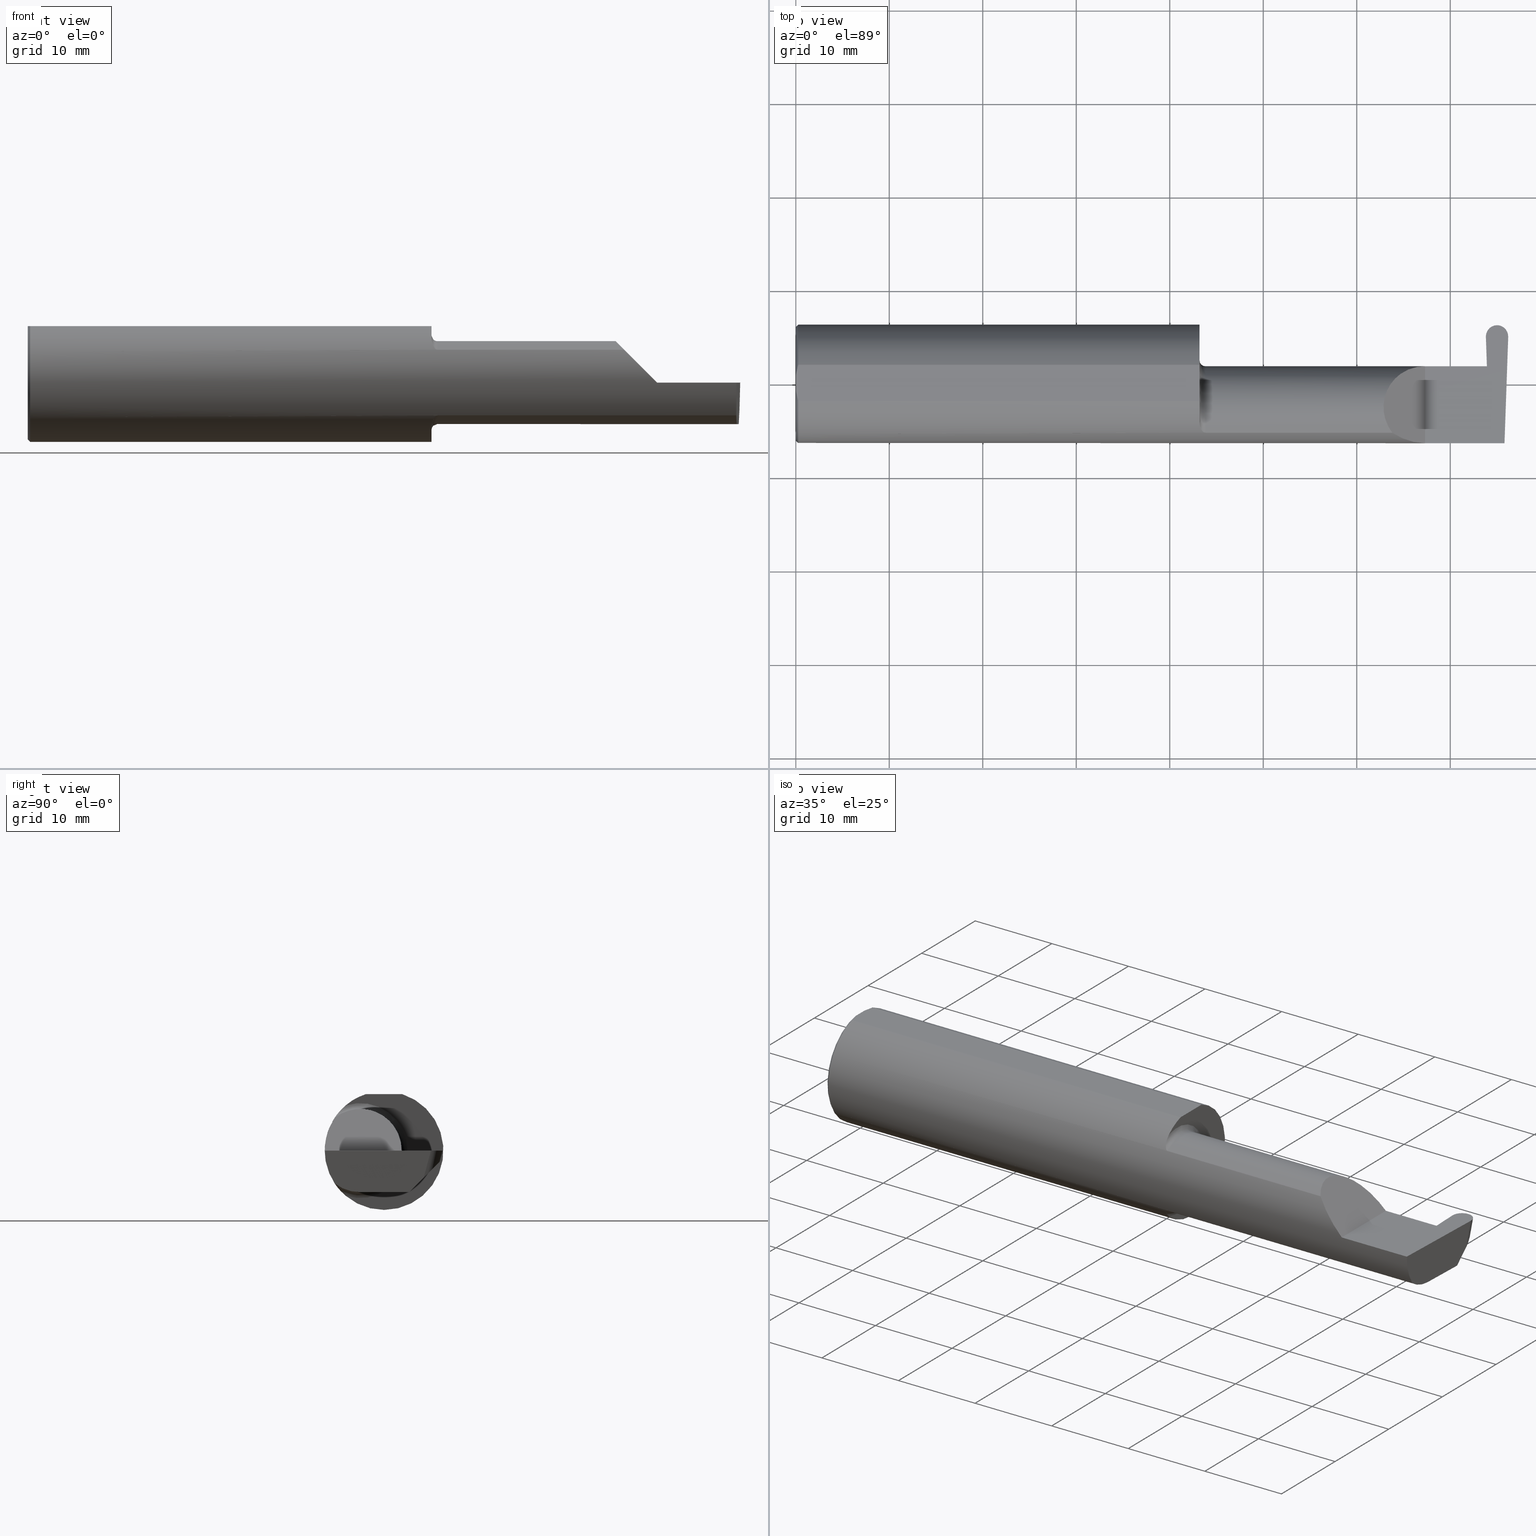
[diagram: canonical four-view strip — front | top / right | iso, engineering-drawing reading convention]
A machine part, canonical four-view strip (front | top / right | iso — engineering-drawing reading convention). The complete STEP part file that produces these views, byte-faithful:
ISO-10303-21;
HEADER;
FILE_DESCRIPTION (( 'STEP AP203' ),
    '1' );
FILE_NAME ('222464-GFR093-20.STEP',
    '2024-06-28T18:33:10',
    ( '' ),
    ( '' ),
    'SwSTEP 2.0',
    'SolidWorks 2024',
    '' );
FILE_SCHEMA (( 'CONFIG_CONTROL_DESIGN' ));
ENDSEC;

DATA;
#1 = CARTESIAN_POINT ( 'NONE',  ( 0.009999999999999856226, 0.07650098038587520299, 0.2378499999999998671 ) ) ;
#2 = VERTEX_POINT ( 'NONE', #653 ) ;
#3 = DIRECTION ( 'NONE',  ( -1.000000000000000000, 4.247829560181828762E-17, -0.000000000000000000 ) ) ;
#4 = EDGE_CURVE ( 'NONE', #442, #472, #268, .T. ) ;
#5 = ORIENTED_EDGE ( 'NONE', *, *, #140, .T. ) ;
#6 = CARTESIAN_POINT ( 'NONE',  ( 1.700000000000000400, -0.1716188362992554783, -0.1820560320165481027 ) ) ;
#7 = ORIENTED_EDGE ( 'NONE', *, *, #140, .F. ) ;
#8 = LOCAL_TIME ( 11, 33, 10.00000000000000000, #607 ) ;
#9 = CARTESIAN_POINT ( 'NONE',  ( -0.002039370078740339320, 0.2471499999999999808, 0.000000000000000000 ) ) ;
#10 = EDGE_LOOP ( 'NONE', ( #5, #610, #444, #145, #21, #114, #254, #671, #198, #668 ) ) ;
#11 = CARTESIAN_POINT ( 'NONE',  ( 2.983451391416268805, -0.2498499999999999610, -0.04956584089959722994 ) ) ;
#12 = EDGE_CURVE ( 'NONE', #59, #184, #541, .T. ) ;
#13 = CARTESIAN_POINT ( 'NONE',  ( 2.951281560477486465, 0.1819474783821845298, -0.06174506811695041480 ) ) ;
#14 = APPROVAL_PERSON_ORGANIZATION ( #138, #81, #303 ) ;
#15 = ORIENTED_EDGE ( 'NONE', *, *, #551, .T. ) ;
#16 = CARTESIAN_POINT ( 'NONE',  ( 2.910211446934811264, 0.07414999999999995206, 0.000000000000000000 ) ) ;
#17 =( BOUNDED_CURVE ( )  B_SPLINE_CURVE ( 3, ( #258, #377, #600, #700 ),
 .UNSPECIFIED., .F., .T. ) 
 B_SPLINE_CURVE_WITH_KNOTS ( ( 4, 4 ),
 ( 1.637964922114648392, 3.237953570749846577 ),
 .UNSPECIFIED. ) 
 CURVE ( )  GEOMETRIC_REPRESENTATION_ITEM ( )  RATIONAL_B_SPLINE_CURVE ( ( 1.000000000000000000, 0.7978071872141893062, 0.7978071872141893062, 1.000000000000000000 ) ) 
 REPRESENTATION_ITEM ( '' )  );
#18 = ORIENTED_EDGE ( 'NONE', *, *, #697, .T. ) ;
#19 = CARTESIAN_POINT ( 'NONE',  ( 2.905918923725884451, 0.1970717818336510108, 0.000000000000000000 ) ) ;
#20 = PLANE ( 'NONE',  #388 ) ;
#21 = ORIENTED_EDGE ( 'NONE', *, *, #309, .T. ) ;
#22 = VECTOR ( 'NONE', #423, 39.37007874015748854 ) ;
#23 = DIRECTION ( 'NONE',  ( 1.000000000000000000, -4.247829560181828762E-17, 0.000000000000000000 ) ) ;
#24 = ORIENTED_EDGE ( 'NONE', *, *, #248, .F. ) ;
#25 = ADVANCED_FACE ( 'NONE', ( #42 ), #705, .T. ) ;
#26 = DESIGN_CONTEXT ( 'detailed design', #327, 'design' ) ;
#27 = CARTESIAN_POINT ( 'NONE',  ( 2.952921434999999928, 0.2437277550733770448, -0.01277199194210160843 ) ) ;
#28 = CLOSED_SHELL ( 'NONE', ( #25, #344, #396, #58, #473, #603, #409, #175, #123, #89, #287, #154, #217, #332, #688, #146, #376, #111, #588 ) ) ;
#29 = DIRECTION ( 'NONE',  ( 0.7071067811865486830, 0.000000000000000000, -0.7071067811865462405 ) ) ;
#30 = ORIENTED_EDGE ( 'NONE', *, *, #621, .T. ) ;
#31 = COORDINATED_UNIVERSAL_TIME_OFFSET ( 8, 0, .BEHIND. ) ;
#32 = DIRECTION ( 'NONE',  ( 0.02590004391968220646, 0.2587322210431824421, 0.9656017944882974158 ) ) ;
#33 = VERTEX_POINT ( 'NONE', #262 ) ;
#34 = DIRECTION ( 'NONE',  ( 0.9992386149554829400, 0.03489418134010576628, 0.01745240643728358798 ) ) ;
#35 = PLANE ( 'NONE',  #331 ) ;
#36 = VERTEX_POINT ( 'NONE', #596 ) ;
#37 = DIRECTION ( 'NONE',  ( 1.000000000000000000, 0.000000000000000000, 0.000000000000000000 ) ) ;
#38 = DIRECTION ( 'NONE',  ( 1.000000000000000000, 0.000000000000000000, 0.000000000000000000 ) ) ;
#39 = FACE_OUTER_BOUND ( 'NONE', #10, .T. ) ;
#40 = APPROVAL_STATUS ( 'not_yet_approved' ) ;
#41 = CARTESIAN_POINT ( 'NONE',  ( 2.953264014264175064, 0.2471499999999999808, 0.000000000000000000 ) ) ;
#42 = FACE_OUTER_BOUND ( 'NONE', #511, .T. ) ;
#43 = EDGE_CURVE ( 'NONE', #584, #442, #17, .T. ) ;
#44 = ORIENTED_EDGE ( 'NONE', *, *, #652, .F. ) ;
#45 = FACE_OUTER_BOUND ( 'NONE', #675, .T. ) ;
#46 = CARTESIAN_POINT ( 'NONE',  ( 1.700000000000000178, -0.1616050818046603776, 0.1905487340154980724 ) ) ;
#47 = PERSON_AND_ORGANIZATION ( #496, #323 ) ;
#48 = CC_DESIGN_PERSON_AND_ORGANIZATION_ASSIGNMENT ( #99, #489, ( #192 ) ) ;
#49 = AXIS2_PLACEMENT_3D ( 'NONE', #416, #34, #244 ) ;
#50 = CARTESIAN_POINT ( 'NONE',  ( 0.000000000000000000, 0.000000000000000000, 0.000000000000000000 ) ) ;
#51 = VECTOR ( 'NONE', #179, 39.37007874015748143 ) ;
#52 = DIRECTION ( 'NONE',  ( 1.000000000000000000, 0.000000000000000000, 0.000000000000000000 ) ) ;
#53 =( BOUNDED_CURVE ( )  B_SPLINE_CURVE ( 3, ( #125, #112, #69, #19 ),
 .UNSPECIFIED., .F., .F. ) 
 B_SPLINE_CURVE_WITH_KNOTS ( ( 4, 4 ),
 ( 3.045231736429750757, 4.645220385064936508 ),
 .UNSPECIFIED. ) 
 CURVE ( )  GEOMETRIC_REPRESENTATION_ITEM ( )  RATIONAL_B_SPLINE_CURVE ( ( 1.000000000000000000, 0.7978071872141923038, 0.7978071872141923038, 1.000000000000000000 ) ) 
 REPRESENTATION_ITEM ( '' )  );
#54 = PERSON_AND_ORGANIZATION ( #496, #323 ) ;
#55 = CARTESIAN_POINT ( 'NONE',  ( 2.983123056744215962, -0.2355204011147991328, -0.09701513151466793772 ) ) ;
#56 = CARTESIAN_POINT ( 'NONE',  ( 0.000000000000000000, 0.03090954545120574992, 0.2378499999999998671 ) ) ;
#57 = CARTESIAN_POINT ( 'NONE',  ( 2.910211446934811264, 0.07414999999999995206, -9.645561665750315126E-21 ) ) ;
#58 = ADVANCED_FACE ( 'NONE', ( #646 ), #706, .F. ) ;
#59 = VERTEX_POINT ( 'NONE', #482 ) ;
#60 = DIRECTION ( 'NONE',  ( 1.000000000000000000, -0.000000000000000000, -0.000000000000000000 ) ) ;
#61 = VECTOR ( 'NONE', #633, 39.37007874015748143 ) ;
#62 = ORIENTED_EDGE ( 'NONE', *, *, #611, .F. ) ;
#63 = CARTESIAN_POINT ( 'NONE',  ( 0.000000000000000000, 0.03090954545120574992, 0.2378499999999998671 ) ) ;
#64 = ORIENTED_EDGE ( 'NONE', *, *, #559, .F. ) ;
#65 = APPROVAL_PERSON_ORGANIZATION ( #47, #156, #107 ) ;
#66 = CARTESIAN_POINT ( 'NONE',  ( 1.714302603425052141, -0.2041009206016211608, -0.1441313430770040926 ) ) ;
#67 = ORIENTED_EDGE ( 'NONE', *, *, #302, .F. ) ;
#68 = EDGE_CURVE ( 'NONE', #2, #59, #402, .T. ) ;
#69 = CARTESIAN_POINT ( 'NONE',  ( 2.904900810685382861, 0.2262267247321106678, 1.148125750367493843E-17 ) ) ;
#70 = LINE ( 'NONE', #454, #470 ) ;
#71 = VECTOR ( 'NONE', #672, 39.37007874015748143 ) ;
#72 = ORIENTED_EDGE ( 'NONE', *, *, #503, .T. ) ;
#73 = CARTESIAN_POINT ( 'NONE',  ( 2.983360130692194634, -0.2080850024789288044, -0.1382955322609671633 ) ) ;
#74 = CARTESIAN_POINT ( 'NONE',  ( 0.000000000000000000, 0.000000000000000000, 0.000000000000000000 ) ) ;
#75 = ORIENTED_EDGE ( 'NONE', *, *, #526, .T. ) ;
#76 = CARTESIAN_POINT ( 'NONE',  ( 3.402190948718818220, -0.1008500000000002589, -0.1750000000000000722 ) ) ;
#77 = EDGE_CURVE ( 'NONE', #679, #467, #462, .T. ) ;
#78 = CARTESIAN_POINT ( 'NONE',  ( 2.913397403057193191, -0.001152430219566448651, -0.1750000000000001832 ) ) ;
#79 = ORIENTED_EDGE ( 'NONE', *, *, #265, .T. ) ;
#80 = VECTOR ( 'NONE', #507, 39.37007874015748143 ) ;
#81 = APPROVAL ( #85, 'UNSPECIFIED' ) ;
#82 = PERSON_AND_ORGANIZATION_ROLE ( 'design_owner' ) ;
#83 = CARTESIAN_POINT ( 'NONE',  ( 2.986463790105515770, -0.1008500000000002589, -0.1750000000000000722 ) ) ;
#84 = ORIENTED_EDGE ( 'NONE', *, *, #391, .F. ) ;
#85 = APPROVAL_STATUS ( 'not_yet_approved' ) ;
#86 = CONICAL_SURFACE ( 'NONE', #429, 0.2398500000000001742, 0.7853981633974466137 ) ;
#87 = CARTESIAN_POINT ( 'NONE',  ( 2.999933069103034811, 0.1971629156477838762, 0.0003401160246315276196 ) ) ;
#88 = ORIENTED_EDGE ( 'NONE', *, *, #632, .F. ) ;
#89 = ADVANCED_FACE ( 'NONE', ( #39 ), #476, .T. ) ;
#90 = CARTESIAN_POINT ( 'NONE',  ( 0.009999999999999856226, 0.000000000000000000, 0.000000000000000000 ) ) ;
#91 = VERTEX_POINT ( 'NONE', #176 ) ;
#92 = EDGE_CURVE ( 'NONE', #467, #168, #209, .T. ) ;
#93 = DIRECTION ( 'NONE',  ( -1.000000000000000000, -0.000000000000000000, -0.000000000000000000 ) ) ;
#94 =( BOUNDED_CURVE ( )  B_SPLINE_CURVE ( 3, ( #27, #692, #461, #683 ),
 .UNSPECIFIED., .F., .T. ) 
 B_SPLINE_CURVE_WITH_KNOTS ( ( 4, 4 ),
 ( 4.712388980384682569, 4.731354904357337077 ),
 .UNSPECIFIED. ) 
 CURVE ( )  GEOMETRIC_REPRESENTATION_ITEM ( )  RATIONAL_B_SPLINE_CURVE ( ( 1.000000000000000000, 0.9999700247019541743, 0.9999700247019541743, 1.000000000000000000 ) ) 
 REPRESENTATION_ITEM ( '' )  );
#95 = ORIENTED_EDGE ( 'NONE', *, *, #438, .F. ) ;
#96 = DIRECTION ( 'NONE',  ( 0.000000000000000000, 0.000000000000000000, 1.000000000000000000 ) ) ;
#97 = DIRECTION ( 'NONE',  ( -1.224646799147351975E-16, 0.000000000000000000, -1.000000000000000000 ) ) ;
#98 = CARTESIAN_POINT ( 'NONE',  ( 1.725000000000000089, -0.2080850024789288877, 0.1382955322609669413 ) ) ;
#99 = PERSON_AND_ORGANIZATION ( #496, #323 ) ;
#100 = PLANE ( 'NONE',  #400 ) ;
#101 = EDGE_CURVE ( 'NONE', #184, #698, #594, .T. ) ;
#102 = CARTESIAN_POINT ( 'NONE',  ( 0.001983148254845701515, -0.04629825796642599717, 0.2378499999999998671 ) ) ;
#103 = CC_DESIGN_APPROVAL ( #156, ( #192 ) ) ;
#104 = CALENDAR_DATE ( 2024, 28, 6 ) ;
#105 = CARTESIAN_POINT ( 'NONE',  ( 2.899170153812740125, 0.07414999999999995206, 0.000000000000000000 ) ) ;
#106 = CARTESIAN_POINT ( 'NONE',  ( 2.650000000000000355, -0.2500000000000000555, 4.286263797015729199E-17 ) ) ;
#107 = APPROVAL_ROLE ( '' ) ;
#108 = VECTOR ( 'NONE', #421, 39.37007874015748854 ) ;
#109 = CARTESIAN_POINT ( 'NONE',  ( 2.983360130692194634, -0.2080850024789288044, -0.1382955322609671633 ) ) ;
#110 = FACE_OUTER_BOUND ( 'NONE', #339, .T. ) ;
#111 = ADVANCED_FACE ( 'NONE', ( #110 ), #662, .T. ) ;
#112 = CARTESIAN_POINT ( 'NONE',  ( 2.924395885334045708, 0.2471499999999999253, 9.093799426912671490E-18 ) ) ;
#113 = PLANE ( 'NONE',  #188 ) ;
#114 = ORIENTED_EDGE ( 'NONE', *, *, #503, .F. ) ;
#115 = DATE_AND_TIME ( #425, #8 ) ;
#116 = CIRCLE ( 'NONE', #162, 0.2498499999999999888 ) ;
#117 = CARTESIAN_POINT ( 'NONE',  ( 1.708176740666625282, -0.1972027065478072216, -0.1535263573771914747 ) ) ;
#118 = VERTEX_POINT ( 'NONE', #221 ) ;
#119 = CARTESIAN_POINT ( 'NONE',  ( 3.402190948718818220, -0.1008500000000002589, -0.1750000000000000722 ) ) ;
#120 = AXIS2_PLACEMENT_3D ( 'NONE', #183, #579, #129 ) ;
#121 = ORIENTED_EDGE ( 'NONE', *, *, #483, .F. ) ;
#122 = CARTESIAN_POINT ( 'NONE',  ( 1.725000000000000089, -0.2080850024789288599, -0.1382955322609669691 ) ) ;
#123 = ADVANCED_FACE ( 'NONE', ( #173 ), #406, .F. ) ;
#124 = VERTEX_POINT ( 'NONE', #229 ) ;
#125 = CARTESIAN_POINT ( 'NONE',  ( 2.952578855735824348, 0.2471499999999999808, 0.000000000000000000 ) ) ;
#126 = AXIS2_PLACEMENT_3D ( 'NONE', #90, #651, #359 ) ;
#127 = CARTESIAN_POINT ( 'NONE',  ( -0.002039370078740339320, 0.2348243371481683328, -0.04599999999999999922 ) ) ;
#128 = ORIENTED_EDGE ( 'NONE', *, *, #43, .T. ) ;
#129 = DIRECTION ( 'NONE',  ( 0.000000000000000000, 0.000000000000000000, -1.000000000000000000 ) ) ;
#130 = VERTEX_POINT ( 'NONE', #284 ) ;
#131 = CARTESIAN_POINT ( 'NONE',  ( 2.552984868485331127, -0.2355204011147990495, 0.09701513151466824303 ) ) ;
#132 = EDGE_CURVE ( 'NONE', #134, #442, #218, .T. ) ;
#133 = PLANE ( 'NONE',  #172 ) ;
#134 = VERTEX_POINT ( 'NONE', #437 ) ;
#135 = LINE ( 'NONE', #355, #255 ) ;
#136 = LINE ( 'NONE', #289, #481 ) ;
#137 = ORIENTED_EDGE ( 'NONE', *, *, #643, .F. ) ;
#138 = PERSON_AND_ORGANIZATION ( #496, #323 ) ;
#139 = CARTESIAN_POINT ( 'NONE',  ( 2.901419954205615603, 0.3108753354292448923, 0.03005099828107738597 ) ) ;
#140 = EDGE_CURVE ( 'NONE', #560, #168, #616, .T. ) ;
#141 = ORIENTED_EDGE ( 'NONE', *, *, #361, .T. ) ;
#142 = VECTOR ( 'NONE', #181, 39.37007874015748143 ) ;
#143 = CARTESIAN_POINT ( 'NONE',  ( 2.986970135337519761, -0.08635016968773899515, -0.1750000000000000722 ) ) ;
#144 = DIRECTION ( 'NONE',  ( -1.000000000000000000, 4.247829560181828762E-17, -0.000000000000000000 ) ) ;
#145 = ORIENTED_EDGE ( 'NONE', *, *, #536, .T. ) ;
#146 = ADVANCED_FACE ( 'NONE', ( #276 ), #382, .F. ) ;
#147 = DIRECTION ( 'NONE',  ( -0.02590004391968206768, 0.2587322210431824421, 0.9656017944882974158 ) ) ;
#148 = CARTESIAN_POINT ( 'NONE',  ( 1.717647060162628581, -0.2062109266231181293, 0.1410799729252291967 ) ) ;
#149 = EDGE_LOOP ( 'NONE', ( #694, #502, #343, #224, #488 ) ) ;
#150 = MECHANICAL_CONTEXT ( 'NONE', #266, 'mechanical' ) ;
#151 = CARTESIAN_POINT ( 'NONE',  ( 0.000000000000000000, 0.000000000000000000, 0.000000000000000000 ) ) ;
#152 = CARTESIAN_POINT ( 'NONE',  ( 0.000000000000000000, -0.03090954545120560767, 0.2378499999999998671 ) ) ;
#153 = PERSON_AND_ORGANIZATION ( #496, #323 ) ;
#154 = ADVANCED_FACE ( 'NONE', ( #395 ), #113, .F. ) ;
#155 = CARTESIAN_POINT ( 'NONE',  ( 2.950596861561887163, 0.2669494164144191606, 0.07389242801882554834 ) ) ;
#156 = APPROVAL ( #159, 'UNSPECIFIED' ) ;
#157 = ORIENTED_EDGE ( 'NONE', *, *, #673, .F. ) ;
#158 = ORIENTED_EDGE ( 'NONE', *, *, #77, .T. ) ;
#159 = APPROVAL_STATUS ( 'not_yet_approved' ) ;
#160 = LINE ( 'NONE', #155, #457 ) ;
#161 = ORIENTED_EDGE ( 'NONE', *, *, #352, .T. ) ;
#162 = AXIS2_PLACEMENT_3D ( 'NONE', #466, #405, #342 ) ;
#163 = CARTESIAN_POINT ( 'NONE',  ( 2.999923946274115405, 0.1970717818336509553, 0.000000000000000000 ) ) ;
#164 = CARTESIAN_POINT ( 'NONE',  ( 1.712616400345754686, -0.2024684335577100758, 0.1464246884265639204 ) ) ;
#165 = COORDINATED_UNIVERSAL_TIME_OFFSET ( 8, 0, .BEHIND. ) ;
#166 = CARTESIAN_POINT ( 'NONE',  ( 4.499279347985562423E-32, -0.2498499999999999610, 3.673940397442054938E-16 ) ) ;
#167 = DIRECTION ( 'NONE',  ( -1.000000000000000000, 4.247829560181828762E-17, -0.000000000000000000 ) ) ;
#168 = VERTEX_POINT ( 'NONE', #561 ) ;
#169 = SHAPE_DEFINITION_REPRESENTATION ( #550, #237 ) ;
#170 = CARTESIAN_POINT ( 'NONE',  ( 1.718863362722770294, -0.2068301641248769807, -0.1401678546132361369 ) ) ;
#171 = ORIENTED_EDGE ( 'NONE', *, *, #309, .F. ) ;
#172 = AXIS2_PLACEMENT_3D ( 'NONE', #16, #413, #190 ) ;
#173 = FACE_OUTER_BOUND ( 'NONE', #464, .T. ) ;
#174 = VERTEX_POINT ( 'NONE', #548 ) ;
#175 = ADVANCED_FACE ( 'NONE', ( #333 ), #86, .T. ) ;
#176 = CARTESIAN_POINT ( 'NONE',  ( 2.899170153812740125, 0.07414999999999995206, 0.000000000000000000 ) ) ;
#177 = EDGE_LOOP ( 'NONE', ( #88, #453, #72, #365 ) ) ;
#178 = CYLINDRICAL_SURFACE ( 'NONE', #569, 0.04700000000000001399 ) ;
#179 = DIRECTION ( 'NONE',  ( -1.000000000000000000, 4.247829560181828762E-17, -0.000000000000000000 ) ) ;
#180 = VERTEX_POINT ( 'NONE', #491 ) ;
#181 = DIRECTION ( 'NONE',  ( -1.000000000000000000, -0.000000000000000000, -0.000000000000000000 ) ) ;
#182 = CIRCLE ( 'NONE', #238, 0.2498499999999999888 ) ;
#183 = CARTESIAN_POINT ( 'NONE',  ( 0.000000000000000000, 0.000000000000000000, 0.000000000000000000 ) ) ;
#184 = VERTEX_POINT ( 'NONE', #63 ) ;
#185 = LINE ( 'NONE', #57, #475 ) ;
#186 = DIRECTION ( 'NONE',  ( 1.000000000000000000, -4.247829560181828762E-17, 0.000000000000000000 ) ) ;
#187 = ORIENTED_EDGE ( 'NONE', *, *, #361, .F. ) ;
#188 = AXIS2_PLACEMENT_3D ( 'NONE', #119, #669, #554 ) ;
#189 = PERSON_AND_ORGANIZATION ( #496, #323 ) ;
#190 = DIRECTION ( 'NONE',  ( 0.000000000000000000, -0.01745240643728358451, -0.9998476951563912696 ) ) ;
#191 = ORIENTED_EDGE ( 'NONE', *, *, #521, .T. ) ;
#192 = PRODUCT_DEFINITION_FORMATION_WITH_SPECIFIED_SOURCE ( 'ANY', '', #608, .NOT_KNOWN. ) ;
#193 = CARTESIAN_POINT ( 'NONE',  ( 1.700000000000000178, 0.2498499999999998500, 0.000000000000000000 ) ) ;
#194 =( BOUNDED_CURVE ( )  B_SPLINE_CURVE ( 3, ( #73, #55, #11, #509 ),
 .UNSPECIFIED., .F., .T. ) 
 B_SPLINE_CURVE_WITH_KNOTS ( ( 4, 4 ),
 ( 6.160376845738969820, 6.746954780470629132 ),
 .UNSPECIFIED. ) 
 CURVE ( )  GEOMETRIC_REPRESENTATION_ITEM ( )  RATIONAL_B_SPLINE_CURVE ( ( 1.000000000000000000, 0.9715321379117536349, 0.9715321379117536349, 1.000000000000000000 ) ) 
 REPRESENTATION_ITEM ( '' )  );
#195 = ORIENTED_EDGE ( 'NONE', *, *, #629, .T. ) ;
#196 = EDGE_CURVE ( 'NONE', #168, #393, #297, .T. ) ;
#197 = LINE ( 'NONE', #249, #645 ) ;
#198 = ORIENTED_EDGE ( 'NONE', *, *, #546, .F. ) ;
#199 = VECTOR ( 'NONE', #564, 39.37007874015748143 ) ;
#200 = LENGTH_MEASURE_WITH_UNIT ( LENGTH_MEASURE( 0.02539999999999999897 ), #362 );
#201 = CYLINDRICAL_SURFACE ( 'NONE', #656, 0.2498499999999999888 ) ;
#202 = ORIENTED_EDGE ( 'NONE', *, *, #551, .F. ) ;
#203 = CARTESIAN_POINT ( 'NONE',  ( 1.725000000000000089, -0.2080850024789288877, 0.1382955322609669413 ) ) ;
#204 = ORIENTED_EDGE ( 'NONE', *, *, #536, .F. ) ;
#205 = VECTOR ( 'NONE', #32, 39.37007874015748854 ) ;
#206 = DATE_TIME_ROLE ( 'creation_date' ) ;
#207 = CARTESIAN_POINT ( 'NONE',  ( 2.914374952050851508, -2.845228123214176286, -0.1794551390957415116 ) ) ;
#208 = ORIENTED_EDGE ( 'NONE', *, *, #621, .F. ) ;
#209 = CIRCLE ( 'NONE', #370, 0.1750000000000000444 ) ;
#210 = LINE ( 'NONE', #374, #22 ) ;
#211 = CARTESIAN_POINT ( 'NONE',  ( 1.706159563508734545, -0.1933019864360848994, 0.1584298865564832404 ) ) ;
#212 = CARTESIAN_POINT ( 'NONE',  ( 2.482823929317965472, 0.07414999999999999369, 0.1671760706820332731 ) ) ;
#213 = DIRECTION ( 'NONE',  ( -0.7071067811865439090, 0.000000000000000000, -0.7071067811865511255 ) ) ;
#214 =( BOUNDED_CURVE ( )  B_SPLINE_CURVE ( 3, ( #256, #426, #640, #708 ),
 .UNSPECIFIED., .F., .T. ) 
 B_SPLINE_CURVE_WITH_KNOTS ( ( 4, 4 ),
 ( 3.145606294630826749, 4.726629019293366873 ),
 .UNSPECIFIED. ) 
 CURVE ( )  GEOMETRIC_REPRESENTATION_ITEM ( )  RATIONAL_B_SPLINE_CURVE ( ( 1.000000000000000000, 0.8023213171585998893, 0.8023213171585998893, 1.000000000000000000 ) ) 
 REPRESENTATION_ITEM ( '' )  );
#215 = VECTOR ( 'NONE', #363, 39.37007874015748143 ) ;
#216 = DIRECTION ( 'NONE',  ( 1.000000000000000000, 0.000000000000000000, -0.000000000000000000 ) ) ;
#217 = ADVANCED_FACE ( 'NONE', ( #504 ), #281, .F. ) ;
#218 = LINE ( 'NONE', #445, #615 ) ;
#219 = EDGE_LOOP ( 'NONE', ( #566, #544, #538, #306, #420, #334 ) ) ;
#220 = CALENDAR_DATE ( 2024, 28, 6 ) ;
#221 = CARTESIAN_POINT ( 'NONE',  ( 2.984317093749864647, -0.2498499999999999888, 0.000000000000000000 ) ) ;
#222 = ORIENTED_EDGE ( 'NONE', *, *, #657, .F. ) ;
#223 = CARTESIAN_POINT ( 'NONE',  ( 1.725000000000000089, -0.1008500000000000785, 0.000000000000000000 ) ) ;
#224 = ORIENTED_EDGE ( 'NONE', *, *, #678, .T. ) ;
#225 = EDGE_CURVE ( 'NONE', #174, #572, #515, .T. ) ;
#226 = DIRECTION ( 'NONE',  ( 0.000000000000000000, 0.9659258262890682012, -0.2588190451025209615 ) ) ;
#227 = VERTEX_POINT ( 'NONE', #305 ) ;
#228 = LINE ( 'NONE', #436, #418 ) ;
#229 = CARTESIAN_POINT ( 'NONE',  ( 2.650000000000000355, 0.07414999999999995206, 1.592040838891556877E-16 ) ) ;
#230 = AXIS2_PLACEMENT_3D ( 'NONE', #389, #500, #336 ) ;
#231 = VERTEX_POINT ( 'NONE', #677 ) ;
#232 = CARTESIAN_POINT ( 'NONE',  ( 2.952874015799872964, 0.1988029421707689093, 0.001160379127183837908 ) ) ;
#233 = EDGE_CURVE ( 'NONE', #291, #446, #689, .T. ) ;
#234 = CARTESIAN_POINT ( 'NONE',  ( 0.009999999999999856226, 0.000000000000000000, -0.2498499999999999888 ) ) ;
#235 = ORIENTED_EDGE ( 'NONE', *, *, #632, .T. ) ;
#236 = DIRECTION ( 'NONE',  ( -0.03489949670249360703, -0.9993908270190959842, 0.000000000000000000 ) ) ;
#237 = ADVANCED_BREP_SHAPE_REPRESENTATION ( '222464-GFR093-20', ( #440, #695 ), #288 ) ;
#238 = AXIS2_PLACEMENT_3D ( 'NONE', #535, #474, #696 ) ;
#239 = DIRECTION ( 'NONE',  ( 0.000000000000000000, -0.7071067811865514585, 0.7071067811865435759 ) ) ;
#240 = ORIENTED_EDGE ( 'NONE', *, *, #384, .F. ) ;
#241 = DIRECTION ( 'NONE',  ( 0.000000000000000000, -0.7071067811865435759, -0.7071067811865514585 ) ) ;
#242 = ORIENTED_EDGE ( 'NONE', *, *, #196, .T. ) ;
#243 = AXIS2_PLACEMENT_3D ( 'NONE', #106, #213, #372 ) ;
#244 = DIRECTION ( 'NONE',  ( -0.03489949670249306579, 0.9993908270190960952, 0.000000000000000000 ) ) ;
#245 = DIRECTION ( 'NONE',  ( 4.247829560181828762E-17, 1.000000000000000000, 0.000000000000000000 ) ) ;
#246 = ORIENTED_EDGE ( 'NONE', *, *, #526, .F. ) ;
#247 = CALENDAR_DATE ( 2024, 28, 6 ) ;
#248 = EDGE_CURVE ( 'NONE', #227, #368, #401, .T. ) ;
#249 = CARTESIAN_POINT ( 'NONE',  ( 1.700000000000000178, 0.07414999999999999369, 1.592040838891556877E-16 ) ) ;
#250 = VECTOR ( 'NONE', #595, 39.37007874015748143 ) ;
#251 = VERTEX_POINT ( 'NONE', #619 ) ;
#252 = CARTESIAN_POINT ( 'NONE',  ( 0.009999999999999856226, 0.07650098038587520299, 0.2378499999999998671 ) ) ;
#253 = CARTESIAN_POINT ( 'NONE',  ( 2.899063548541081836, 0.07404339472834164937, -0.006107411922940303266 ) ) ;
#254 = ORIENTED_EDGE ( 'NONE', *, *, #233, .F. ) ;
#255 = VECTOR ( 'NONE', #525, 39.37007874015748143 ) ;
#256 = CARTESIAN_POINT ( 'NONE',  ( 2.952921434999999928, 0.2348123830215256280, -0.04601195412664269707 ) ) ;
#257 = EDGE_CURVE ( 'NONE', #231, #291, #613, .T. ) ;
#258 = CARTESIAN_POINT ( 'NONE',  ( 2.999923946274115405, 0.1970717818336509553, 0.000000000000000000 ) ) ;
#259 = DATE_AND_TIME ( #542, #598 ) ;
#260 = APPROVAL ( #40, 'UNSPECIFIED' ) ;
#261 = CARTESIAN_POINT ( 'NONE',  ( 2.899099083631634599, 0.07407892981889442618, -0.004071607948626863351 ) ) ;
#262 = CARTESIAN_POINT ( 'NONE',  ( 2.905918923725884451, 0.1970717818336510108, 0.000000000000000000 ) ) ;
#263 = CARTESIAN_POINT ( 'NONE',  ( 3.000000000000000444, -0.2500000000000000555, 0.000000000000000000 ) ) ;
#264 = CARTESIAN_POINT ( 'NONE',  ( 1.700367168219773850, -0.1713400252854602734, 0.1819601557798506131 ) ) ;
#265 = EDGE_CURVE ( 'NONE', #227, #59, #335, .T. ) ;
#266 = APPLICATION_CONTEXT ( 'configuration controlled 3d designs of mechanical parts and assemblies' ) ;
#267 = DIRECTION ( 'NONE',  ( 0.01806679408117471686, 0.000000000000000000, -0.9998367821557817559 ) ) ;
#268 = LINE ( 'NONE', #537, #358 ) ;
#269 = APPROVAL_DATE_TIME ( #322, #156 ) ;
#270 = EDGE_CURVE ( 'NONE', #184, #227, #519, .T. ) ;
#271 = DIRECTION ( 'NONE',  ( 0.000000000000000000, 0.9659258262890682012, -0.2588190451025209615 ) ) ;
#272 = DIRECTION ( 'NONE',  ( 1.000000000000000000, 0.000000000000000000, 0.000000000000000000 ) ) ;
#273 = DATE_TIME_ROLE ( 'classification_date' ) ;
#274 = DIMENSIONAL_EXPONENTS ( 1.000000000000000000, 0.000000000000000000, 0.000000000000000000, 0.000000000000000000, 0.000000000000000000, 0.000000000000000000, 0.000000000000000000 ) ;
#275 = LINE ( 'NONE', #404, #356 ) ;
#276 = FACE_OUTER_BOUND ( 'NONE', #575, .T. ) ;
#277 = ORIENTED_EDGE ( 'NONE', *, *, #132, .F. ) ;
#278 = CARTESIAN_POINT ( 'NONE',  ( 1.701385488563270432, -0.1808287530430325307, -0.1728790649396287904 ) ) ;
#279 = EDGE_CURVE ( 'NONE', #686, #679, #527, .T. ) ;
#280 = ORIENTED_EDGE ( 'NONE', *, *, #101, .T. ) ;
#281 = PLANE ( 'NONE',  #591 ) ;
#282 = ORIENTED_EDGE ( 'NONE', *, *, #449, .F. ) ;
#283 = LOCAL_TIME ( 11, 33, 10.00000000000000000, #165 ) ;
#284 = CARTESIAN_POINT ( 'NONE',  ( 2.910211446934811264, 0.07414999999999995206, 0.000000000000000000 ) ) ;
#285 = ORIENTED_EDGE ( 'NONE', *, *, #582, .F. ) ;
#286 = LINE ( 'NONE', #547, #448 ) ;
#287 = ADVANCED_FACE ( 'NONE', ( #574 ), #292, .T. ) ;
#288 =( GEOMETRIC_REPRESENTATION_CONTEXT ( 3 ) GLOBAL_UNCERTAINTY_ASSIGNED_CONTEXT ( ( #298 ) ) GLOBAL_UNIT_ASSIGNED_CONTEXT ( ( #638, #587, #687 ) ) REPRESENTATION_CONTEXT ( 'NONE', 'WORKASPACE' ) );
#289 = CARTESIAN_POINT ( 'NONE',  ( 2.905871548989777509, 0.1984284167760241857, 0.000000000000000000 ) ) ;
#290 = AXIS2_PLACEMENT_3D ( 'NONE', #13, #326, #226 ) ;
#291 = VERTEX_POINT ( 'NONE', #523 ) ;
#292 = PLANE ( 'NONE',  #435 ) ;
#293 = ORIENTED_EDGE ( 'NONE', *, *, #225, .T. ) ;
#294 = DIRECTION ( 'NONE',  ( 0.02590004391968206768, -0.2587322210431824421, -0.9656017944882974158 ) ) ;
#295 = DIRECTION ( 'NONE',  ( 0.000000000000000000, 0.000000000000000000, -1.000000000000000000 ) ) ;
#296 = ORIENTED_EDGE ( 'NONE', *, *, #460, .F. ) ;
#297 = B_SPLINE_CURVE_WITH_KNOTS ( 'NONE', 3,
 ( #122, #441, #665, #170, #386, #66, #609, #117, #556, #278, #6, #498 ),
 .UNSPECIFIED., .F., .F.,
 ( 4, 2, 2, 2, 2, 4 ),
 ( 1.964491429042083594E-07, 0.0001260981470478416474, 0.0002519998449527791149, 0.0005038032407626400096, 0.001007410032382362666, 0.002014623615621803643 ),
 .UNSPECIFIED. ) ;
#298 = UNCERTAINTY_MEASURE_WITH_UNIT (LENGTH_MEASURE( 1.000000000000000082E-05 ), #638, 'distance_accuracy_value', 'NONE');
#299 = APPLICATION_PROTOCOL_DEFINITION ( 'international standard', 'config_control_design', 1994, #327 ) ;
#300 = DIRECTION ( 'NONE',  ( 1.000000000000000000, -4.247829560181828762E-17, 0.000000000000000000 ) ) ;
#301 = ORIENTED_EDGE ( 'NONE', *, *, #667, .F. ) ;
#302 = EDGE_CURVE ( 'NONE', #174, #584, #510, .T. ) ;
#303 = APPROVAL_ROLE ( '' ) ;
#304 = CC_DESIGN_PERSON_AND_ORGANIZATION_ASSIGNMENT ( #54, #597, ( #604 ) ) ;
#305 = CARTESIAN_POINT ( 'NONE',  ( 0.000000000000000000, 0.000000000000000000, -0.2398500000000001742 ) ) ;
#306 = ORIENTED_EDGE ( 'NONE', *, *, #101, .F. ) ;
#307 = CARTESIAN_POINT ( 'NONE',  ( 0.000000000000000000, -0.07650098038587520299, 0.2378499999999998671 ) ) ;
#308 = ORIENTED_EDGE ( 'NONE', *, *, #419, .F. ) ;
#309 = EDGE_CURVE ( 'NONE', #124, #91, #197, .T. ) ;
#310 = DIRECTION ( 'NONE',  ( 0.9998367324388628408, 0.0003153570480505020501, 0.01806679318280274976 ) ) ;
#311 = DIRECTION ( 'NONE',  ( 0.000000000000000000, 0.000000000000000000, -1.000000000000000000 ) ) ;
#312 = FACE_OUTER_BOUND ( 'NONE', #642, .T. ) ;
#313 = CARTESIAN_POINT ( 'NONE',  ( 0.000000000000000000, 0.000000000000000000, 0.000000000000000000 ) ) ;
#314 = COORDINATED_UNIVERSAL_TIME_OFFSET ( 8, 0, .BEHIND. ) ;
#315 = LINE ( 'NONE', #484, #364 ) ;
#316 = APPROVAL_PERSON_ORGANIZATION ( #153, #260, #369 ) ;
#317 = DIRECTION ( 'NONE',  ( -0.000000000000000000, 1.000000000000000000, -0.000000000000000000 ) ) ;
#318 = PERSON_AND_ORGANIZATION ( #496, #323 ) ;
#319 = CARTESIAN_POINT ( 'NONE',  ( 2.983360130692194634, -0.2080850024789288044, -0.1382955322609671633 ) ) ;
#320 = CARTESIAN_POINT ( 'NONE',  ( 1.714343523383978329, -0.2041337200786081940, 0.1440846171672512943 ) ) ;
#321 = EDGE_CURVE ( 'NONE', #180, #698, #70, .T. ) ;
#322 = DATE_AND_TIME ( #220, #469 ) ;
#323 = ORGANIZATION ( 'UNSPECIFIED', 'UNSPECIFIED', '' ) ;
#324 = VECTOR ( 'NONE', #317, 39.37007874015748143 ) ;
#325 = DIRECTION ( 'NONE',  ( 0.000000000000000000, -1.000000000000000000, 0.000000000000000000 ) ) ;
#326 = DIRECTION ( 'NONE',  ( -0.02590004391968220646, -0.2587322210431824976, -0.9656017944882975268 ) ) ;
#327 = APPLICATION_CONTEXT ( 'configuration controlled 3d designs of mechanical parts and assemblies' ) ;
#328 = CARTESIAN_POINT ( 'NONE',  ( 2.993681016992925770, 0.1058243371481696476, -0.1750000000000001277 ) ) ;
#329 = CARTESIAN_POINT ( 'NONE',  ( 0.005466242398876384675, 0.06169385855649840017, 0.2378499999999998671 ) ) ;
#330 = ORIENTED_EDGE ( 'NONE', *, *, #340, .F. ) ;
#331 = AXIS2_PLACEMENT_3D ( 'NONE', #263, #97, #583 ) ;
#332 = ADVANCED_FACE ( 'NONE', ( #685 ), #20, .F. ) ;
#333 = FACE_OUTER_BOUND ( 'NONE', #631, .T. ) ;
#334 = ORIENTED_EDGE ( 'NONE', *, *, #68, .F. ) ;
#335 = CIRCLE ( 'NONE', #120, 0.2398500000000001742 ) ;
#336 = DIRECTION ( 'NONE',  ( -0.03489949670249360009, -0.9993908270190959842, 0.000000000000000000 ) ) ;
#337 = ORIENTED_EDGE ( 'NONE', *, *, #68, .T. ) ;
#338 = DIRECTION ( 'NONE',  ( 0.000000000000000000, -0.9659258262890682012, 0.2588190451025209615 ) ) ;
#339 = EDGE_LOOP ( 'NONE', ( #67, #95, #157, #614, #627 ) ) ;
#340 = EDGE_CURVE ( 'NONE', #393, #180, #116, .T. ) ;
#341 = CARTESIAN_POINT ( 'NONE',  ( 2.910211446934811264, 0.07414999999999995206, 0.000000000000000000 ) ) ;
#342 = DIRECTION ( 'NONE',  ( 0.000000000000000000, 1.000000000000000000, 0.000000000000000000 ) ) ;
#343 = ORIENTED_EDGE ( 'NONE', *, *, #643, .T. ) ;
#344 = ADVANCED_FACE ( 'NONE', ( #565 ), #133, .F. ) ;
#345 = CARTESIAN_POINT ( 'NONE',  ( 2.908987657962752937, 0.1664162189566759653, -0.1144081181914931161 ) ) ;
#346 = AXIS2_PLACEMENT_3D ( 'NONE', #366, #144, #325 ) ;
#347 = DIRECTION ( 'NONE',  ( -1.000000000000000000, -0.000000000000000000, -0.000000000000000000 ) ) ;
#348 = ORIENTED_EDGE ( 'NONE', *, *, #629, .F. ) ;
#349 = CARTESIAN_POINT ( 'NONE',  ( 2.906932232762046375, 0.2056520186124942418, -0.07517231853567442335 ) ) ;
#350 = DIRECTION ( 'NONE',  ( 0.000000000000000000, 1.000000000000000000, 0.000000000000000000 ) ) ;
#351 = VERTEX_POINT ( 'NONE', #630 ) ;
#352 = EDGE_CURVE ( 'NONE', #130, #33, #136, .T. ) ;
#353 = CARTESIAN_POINT ( 'NONE',  ( 1.700000000000000178, 0.07404339472834167712, -0.006107411922940873122 ) ) ;
#354 = VERTEX_POINT ( 'NONE', #83 ) ;
#355 = CARTESIAN_POINT ( 'NONE',  ( -0.002039370078740339320, 0.1058243371481696476, -0.1750000000000001277 ) ) ;
#356 = VECTOR ( 'NONE', #394, 39.37007874015747433 ) ;
#357 = ORIENTED_EDGE ( 'NONE', *, *, #697, .F. ) ;
#358 = VECTOR ( 'NONE', #432, 39.37007874015748854 ) ;
#359 = DIRECTION ( 'NONE',  ( 0.000000000000000000, 0.000000000000000000, -1.000000000000000000 ) ) ;
#360 = ORIENTED_EDGE ( 'NONE', *, *, #657, .T. ) ;
#361 = EDGE_CURVE ( 'NONE', #251, #383, #518, .T. ) ;
#362 =( LENGTH_UNIT ( ) NAMED_UNIT ( * ) SI_UNIT ( $, .METRE. ) );
#363 = DIRECTION ( 'NONE',  ( 4.247829560181828762E-17, 1.000000000000000000, -0.000000000000000000 ) ) ;
#364 = VECTOR ( 'NONE', #648, 39.37007874015748854 ) ;
#365 = ORIENTED_EDGE ( 'NONE', *, *, #652, .T. ) ;
#366 = CARTESIAN_POINT ( 'NONE',  ( 1.700000000000000178, -0.1008500000000000785, 0.000000000000000000 ) ) ;
#367 = CARTESIAN_POINT ( 'NONE',  ( 0.000000000000000000, 0.2498499999999998500, 0.2378499999999998671 ) ) ;
#368 = VERTEX_POINT ( 'NONE', #234 ) ;
#369 = APPROVAL_ROLE ( '' ) ;
#370 = AXIS2_PLACEMENT_3D ( 'NONE', #223, #167, #605 ) ;
#371 = LINE ( 'NONE', #307, #250 ) ;
#372 = DIRECTION ( 'NONE',  ( -0.7071067811865511255, 0.000000000000000000, 0.7071067811865439090 ) ) ;
#373 = ORIENTED_EDGE ( 'NONE', *, *, #225, .F. ) ;
#374 = CARTESIAN_POINT ( 'NONE',  ( 2.905909800896965045, 0.1971629156477839040, 0.0003401160246315234454 ) ) ;
#375 = CC_DESIGN_APPROVAL ( #81, ( #604 ) ) ;
#376 = ADVANCED_FACE ( 'NONE', ( #312 ), #599, .F. ) ;
#377 = CARTESIAN_POINT ( 'NONE',  ( 3.000942059314616550, 0.2262267247321108621, 2.658190119782672195E-18 ) ) ;
#378 = PERSON_AND_ORGANIZATION_ROLE ( 'design_supplier' ) ;
#379 = CARTESIAN_POINT ( 'NONE',  ( 2.409263745716142768, -0.07597241004310609225, 0.2407362542838549779 ) ) ;
#380 = CARTESIAN_POINT ( 'NONE',  ( 1.723329956043142763, -0.2080850024798588660, 0.1382955322595677550 ) ) ;
#381 = DIRECTION ( 'NONE',  ( -0.01806954526206907413, 0.01744955702544858864, 0.9996844524616943506 ) ) ;
#382 = PLANE ( 'NONE',  #230 ) ;
#383 = VERTEX_POINT ( 'NONE', #528 ) ;
#384 = EDGE_CURVE ( 'NONE', #686, #180, #480, .T. ) ;
#385 = CC_DESIGN_DATE_AND_TIME_ASSIGNMENT ( #115, #206, ( #604 ) ) ;
#386 = CARTESIAN_POINT ( 'NONE',  ( 1.717611663768900288, -0.2061921161193829288, -0.1411075319999378352 ) ) ;
#387 = EDGE_LOOP ( 'NONE', ( #7, #15, #195, #360, #62, #403, #428, #84, #411, #664, #562, #330, #459 ) ) ;
#388 = AXIS2_PLACEMENT_3D ( 'NONE', #127, #239, #241 ) ;
#389 = CARTESIAN_POINT ( 'NONE',  ( 2.999971321010222347, 0.1984284167760241857, 0.000000000000000000 ) ) ;
#390 = ORIENTED_EDGE ( 'NONE', *, *, #279, .T. ) ;
#391 = EDGE_CURVE ( 'NONE', #2, #686, #371, .T. ) ;
#392 = DIRECTION ( 'NONE',  ( 0.000000000000000000, -1.000000000000000000, 0.000000000000000000 ) ) ;
#393 = VERTEX_POINT ( 'NONE', #704 ) ;
#394 = DIRECTION ( 'NONE',  ( -0.03489949670249306579, 0.9993908270190960952, -1.222058880457094641E-16 ) ) ;
#395 = FACE_OUTER_BOUND ( 'NONE', #149, .T. ) ;
#396 = ADVANCED_FACE ( 'NONE', ( #702 ), #201, .T. ) ;
#397 = ORIENTED_EDGE ( 'NONE', *, *, #707, .F. ) ;
#398 = PRODUCT_RELATED_PRODUCT_CATEGORY ( 'detail', '', ( #608 ) ) ;
#399 = CARTESIAN_POINT ( 'NONE',  ( 2.600434159100402987, -0.2498499999999999888, 0.04956584089959736872 ) ) ;
#400 = AXIS2_PLACEMENT_3D ( 'NONE', #151, #38, #531 ) ;
#401 = LINE ( 'NONE', #410, #450 ) ;
#402 = B_SPLINE_CURVE_WITH_KNOTS ( 'NONE', 3,
 ( #422, #427, #102, #152 ),
 .UNSPECIFIED., .F., .F.,
 ( 4, 4 ),
 ( 0.01317593029100230795, 0.01435802289191462008 ),
 .UNSPECIFIED. ) ;
#403 = ORIENTED_EDGE ( 'NONE', *, *, #77, .F. ) ;
#404 = CARTESIAN_POINT ( 'NONE',  ( 2.919967132617691696, -0.1176896267254948364, -0.1750000000000000722 ) ) ;
#405 = DIRECTION ( 'NONE',  ( 1.000000000000000000, -4.247829560181828762E-17, 0.000000000000000000 ) ) ;
#406 = TOROIDAL_SURFACE ( 'NONE', #497, 0.1999999999999999833, 0.02499999999999994241 ) ;
#407 = ORIENTED_EDGE ( 'NONE', *, *, #582, .T. ) ;
#408 = CARTESIAN_POINT ( 'NONE',  ( 2.910211446934811264, 0.07414999999999995206, -9.645561665750315126E-21 ) ) ;
#409 = ADVANCED_FACE ( 'NONE', ( #478 ), #100, .F. ) ;
#410 = CARTESIAN_POINT ( 'NONE',  ( 0.000000000000000000, 0.000000000000000000, -0.2398500000000001742 ) ) ;
#411 = ORIENTED_EDGE ( 'NONE', *, *, #419, .T. ) ;
#412 = LOCAL_TIME ( 11, 33, 10.00000000000000000, #31 ) ;
#413 = DIRECTION ( 'NONE',  ( 0.000000000000000000, -0.9998476951563912696, 0.01745240643728358451 ) ) ;
#414 = ORIENTED_EDGE ( 'NONE', *, *, #340, .T. ) ;
#415 =( BOUNDED_CURVE ( )  B_SPLINE_CURVE ( 3, ( #345, #349, #573, #635 ),
 .UNSPECIFIED., .F., .F. ) 
 B_SPLINE_CURVE_WITH_KNOTS ( ( 4, 4 ),
 ( 1.556556287886220469, 3.137579012548759039 ),
 .UNSPECIFIED. ) 
 CURVE ( )  GEOMETRIC_REPRESENTATION_ITEM ( )  RATIONAL_B_SPLINE_CURVE ( ( 1.000000000000000000, 0.8023213171586003334, 0.8023213171586003334, 1.000000000000000000 ) ) 
 REPRESENTATION_ITEM ( '' )  );
#416 = CARTESIAN_POINT ( 'NONE',  ( 2.905871548989777509, 0.1984284167760241857, 0.000000000000000000 ) ) ;
#417 = CARTESIAN_POINT ( 'NONE',  ( 2.984022185481226330, -0.1771157075472507281, -0.1623092683844333250 ) ) ;
#418 = VECTOR ( 'NONE', #447, 39.37007874015748143 ) ;
#419 = EDGE_CURVE ( 'NONE', #2, #368, #492, .T. ) ;
#420 = ORIENTED_EDGE ( 'NONE', *, *, #12, .F. ) ;
#421 = DIRECTION ( 'NONE',  ( -0.03489949670249360009, -0.9993908270190959842, 1.222058880457094394E-16 ) ) ;
#422 = CARTESIAN_POINT ( 'NONE',  ( 0.009999999999999856226, -0.07650098038587520299, 0.2378499999999998671 ) ) ;
#423 = DIRECTION ( 'NONE',  ( 0.02590004391968206074, -0.2587322210431824421, -0.9656017944882974158 ) ) ;
#424 = DIRECTION ( 'NONE',  ( -1.000000000000000000, 4.247829560181828762E-17, -0.000000000000000000 ) ) ;
#425 = CALENDAR_DATE ( 2024, 28, 6 ) ;
#426 = CARTESIAN_POINT ( 'NONE',  ( 2.980657859912265728, 0.2340679672696867886, -0.04675636987848154347 ) ) ;
#427 = CARTESIAN_POINT ( 'NONE',  ( 0.005459900170181723050, -0.06167314502012866823, 0.2378499999999998671 ) ) ;
#428 = ORIENTED_EDGE ( 'NONE', *, *, #279, .F. ) ;
#429 = AXIS2_PLACEMENT_3D ( 'NONE', #558, #272, #494 ) ;
#430 = EDGE_CURVE ( 'NONE', #368, #698, #182, .T. ) ;
#431 = CARTESIAN_POINT ( 'NONE',  ( 2.899134618722187362, 0.07411446490944717524, -0.002035803974313431242 ) ) ;
#432 = DIRECTION ( 'NONE',  ( -0.02590004391968220646, -0.2587322210431824421, -0.9656017944882975268 ) ) ;
#433 = CARTESIAN_POINT ( 'NONE',  ( 2.650000000000000355, -0.2500000000000000555, 4.286263797015729199E-17 ) ) ;
#434 = ORIENTED_EDGE ( 'NONE', *, *, #257, .T. ) ;
#435 = AXIS2_PLACEMENT_3D ( 'NONE', #193, #186, #245 ) ;
#436 = CARTESIAN_POINT ( 'NONE',  ( 2.315421434999999750, -0.2080850024789287489, 0.1382955322609671633 ) ) ;
#437 = CARTESIAN_POINT ( 'NONE',  ( 2.952578855735824348, 0.2471499999999999808, 0.000000000000000000 ) ) ;
#438 = EDGE_CURVE ( 'NONE', #549, #174, #214, .T. ) ;
#439 = ORIENTED_EDGE ( 'NONE', *, *, #12, .T. ) ;
#440 = MANIFOLD_SOLID_BREP ( 'Radii', #28 ) ;
#441 = CARTESIAN_POINT ( 'NONE',  ( 1.723318040126430084, -0.2080850024789289987, -0.1382955322609668858 ) ) ;
#442 = VERTEX_POINT ( 'NONE', #41 ) ;
#443 = CARTESIAN_POINT ( 'NONE',  ( 0.002005502345409059580, 0.04647171987093979412, 0.2378499999999998671 ) ) ;
#444 = ORIENTED_EDGE ( 'NONE', *, *, #611, .T. ) ;
#445 = CARTESIAN_POINT ( 'NONE',  ( -0.002039370078740339320, 0.2471499999999999808, 0.000000000000000000 ) ) ;
#446 = VERTEX_POINT ( 'NONE', #540 ) ;
#447 = DIRECTION ( 'NONE',  ( 1.000000000000000000, -4.247829560181828762E-17, 0.000000000000000000 ) ) ;
#448 = VECTOR ( 'NONE', #236, 39.37007874015748143 ) ;
#449 = EDGE_CURVE ( 'NONE', #231, #351, #315, .T. ) ;
#450 = VECTOR ( 'NONE', #29, 39.37007874015748854 ) ;
#451 = CARTESIAN_POINT ( 'NONE',  ( 2.315421434999999750, -0.2080850024789287489, -0.1382955322609671633 ) ) ;
#452 = B_SPLINE_CURVE_WITH_KNOTS ( 'NONE', 3,
 ( #253, #261, #431, #105 ),
 .UNSPECIFIED., .F., .F.,
 ( 4, 4 ),
 ( 0.000000000000000000, 1.000000000000000000 ),
 .UNSPECIFIED. ) ;
#453 = ORIENTED_EDGE ( 'NONE', *, *, #233, .T. ) ;
#454 = CARTESIAN_POINT ( 'NONE',  ( 0.000000000000000000, 0.07650098038587520299, 0.2378499999999998671 ) ) ;
#455 = ORIENTED_EDGE ( 'NONE', *, *, #270, .T. ) ;
#456 = CARTESIAN_POINT ( 'NONE',  ( 2.650000000000000355, 0.07414999999999995206, 1.592040838891556877E-16 ) ) ;
#457 = VECTOR ( 'NONE', #147, 39.37007874015748854 ) ;
#458 = CARTESIAN_POINT ( 'NONE',  ( 2.910321839925223752, 0.07404339472834164937, -0.006107411922940873990 ) ) ;
#459 = ORIENTED_EDGE ( 'NONE', *, *, #196, .F. ) ;
#460 = EDGE_CURVE ( 'NONE', #472, #134, #160, .T. ) ;
#461 = CARTESIAN_POINT ( 'NONE',  ( 2.952921434999999928, 0.2377865837197746524, -0.03493385853676862773 ) ) ;
#462 = B_SPLINE_CURVE_WITH_KNOTS ( 'NONE', 3,
 ( #46, #529, #264, #641, #485, #211, #592, #164, #320, #148, #479, #533, #380, #98 ),
 .UNSPECIFIED., .F., .F.,
 ( 4, 2, 2, 2, 2, 2, 4 ),
 ( 0.0003834465838148152454, 0.0008781406165086705221, 0.001372834649202525799, 0.001867528681896382919, 0.002114875698243306491, 0.002238549206416760688, 0.002362222714590214885 ),
 .UNSPECIFIED. ) ;
#463 = DIRECTION ( 'NONE',  ( -0.03701744261649772549, -0.7066221440565400025, -0.7066221440565478851 ) ) ;
#464 = EDGE_LOOP ( 'NONE', ( #158, #495, #242, #246 ) ) ;
#465 = PLANE ( 'NONE',  #49 ) ;
#466 = CARTESIAN_POINT ( 'NONE',  ( 1.700000000000000178, 0.000000000000000000, 0.000000000000000000 ) ) ;
#467 = VERTEX_POINT ( 'NONE', #203 ) ;
#468 = CARTESIAN_POINT ( 'NONE',  ( 1.700000000000000178, -0.1616050818046603776, 0.1905487340154980724 ) ) ;
#469 = LOCAL_TIME ( 11, 33, 10.00000000000000000, #593 ) ;
#470 = VECTOR ( 'NONE', #693, 39.37007874015748143 ) ;
#471 = CARTESIAN_POINT ( 'NONE',  ( 2.996324603059298930, 0.1562874789046420076, -0.1245368582435272126 ) ) ;
#472 = VERTEX_POINT ( 'NONE', #699 ) ;
#473 = ADVANCED_FACE ( 'NONE', ( #45 ), #35, .F. ) ;
#474 = DIRECTION ( 'NONE',  ( 1.000000000000000000, 0.000000000000000000, 0.000000000000000000 ) ) ;
#475 = VECTOR ( 'NONE', #381, 39.37007874015748854 ) ;
#476 = CYLINDRICAL_SURFACE ( 'NONE', #649, 0.1750000000000001277 ) ;
#477 = APPLICATION_PROTOCOL_DEFINITION ( 'international standard', 'config_control_design', 1994, #266 ) ;
#478 = FACE_OUTER_BOUND ( 'NONE', #505, .T. ) ;
#479 = CARTESIAN_POINT ( 'NONE',  ( 1.718876997637615034, -0.2068363917296599241, 0.1401586554522231409 ) ) ;
#480 = LINE ( 'NONE', #585, #215 ) ;
#481 = VECTOR ( 'NONE', #577, 39.37007874015748854 ) ;
#482 = CARTESIAN_POINT ( 'NONE',  ( 0.000000000000000000, -0.03090954545120560767, 0.2378499999999998671 ) ) ;
#483 = EDGE_CURVE ( 'NONE', #33, #383, #210, .T. ) ;
#484 = CARTESIAN_POINT ( 'NONE',  ( 2.913428897145816432, -0.1010041597270660840, -0.1750000000000000722 ) ) ;
#485 = CARTESIAN_POINT ( 'NONE',  ( 1.702968662030528879, -0.1849684355203377595, 0.1680843977756268648 ) ) ;
#486 = DATE_AND_TIME ( #104, #283 ) ;
#487 = DIRECTION ( 'NONE',  ( 0.000000000000000000, 0.000000000000000000, 1.000000000000000000 ) ) ;
#488 = ORIENTED_EDGE ( 'NONE', *, *, #707, .T. ) ;
#489 = PERSON_AND_ORGANIZATION_ROLE ( 'creator' ) ;
#490 = CARTESIAN_POINT ( 'NONE',  ( 3.501298404146671484, 0.2498499999999998500, 0.2378499999999998671 ) ) ;
#491 = CARTESIAN_POINT ( 'NONE',  ( 1.700000000000000178, 0.07650098038587520299, 0.2378499999999998671 ) ) ;
#492 = CIRCLE ( 'NONE', #126, 0.2498499999999999888 ) ;
#493 = CARTESIAN_POINT ( 'NONE',  ( 2.952921434999999928, 0.2348123830215256280, -0.04601195412664269707 ) ) ;
#494 = DIRECTION ( 'NONE',  ( 0.000000000000000000, 0.000000000000000000, -1.000000000000000000 ) ) ;
#495 = ORIENTED_EDGE ( 'NONE', *, *, #92, .T. ) ;
#496 = PERSON ( 'UNSPECIFIED', 'UNSPECIFIED', 'UNSPECIFIED', ('UNSPECIFIED'), ('UNSPECIFIED'), ('UNSPECIFIED') ) ;
#497 = AXIS2_PLACEMENT_3D ( 'NONE', #612, #3, #674 ) ;
#498 = CARTESIAN_POINT ( 'NONE',  ( 1.700000000000000178, -0.1616050818046603776, -0.1905487340154980724 ) ) ;
#499 = ORIENTED_EDGE ( 'NONE', *, *, #302, .T. ) ;
#500 = DIRECTION ( 'NONE',  ( -0.9992386149554828290, 0.03489418134010630057, 0.01745240643728358798 ) ) ;
#501 = SECURITY_CLASSIFICATION ( '', '', #534 ) ;
#502 = ORIENTED_EDGE ( 'NONE', *, *, #449, .T. ) ;
#503 = EDGE_CURVE ( 'NONE', #446, #91, #452, .T. ) ;
#504 = FACE_OUTER_BOUND ( 'NONE', #617, .T. ) ;
#505 = EDGE_LOOP ( 'NONE', ( #439, #455, #79 ) ) ;
#506 = DIRECTION ( 'NONE',  ( 1.000000000000000000, -0.000000000000000000, -0.000000000000000000 ) ) ;
#507 = DIRECTION ( 'NONE',  ( -0.03701744261649734385, 0.7066221440565400025, 0.7066221440565478851 ) ) ;
#508 = ORIENTED_EDGE ( 'NONE', *, *, #430, .F. ) ;
#509 = CARTESIAN_POINT ( 'NONE',  ( 2.984317093749864647, -0.2498499999999999888, 0.000000000000000000 ) ) ;
#510 = LINE ( 'NONE', #87, #205 ) ;
#511 = EDGE_LOOP ( 'NONE', ( #602, #682, #308, #337 ) ) ;
#512 =( BOUNDED_CURVE ( )  B_SPLINE_CURVE ( 3, ( #676, #399, #131, #622 ),
 .UNSPECIFIED., .F., .F. ) 
 B_SPLINE_CURVE_WITH_KNOTS ( ( 4, 4 ),
 ( 4.712388980384689674, 5.298966915116351650 ),
 .UNSPECIFIED. ) 
 CURVE ( )  GEOMETRIC_REPRESENTATION_ITEM ( )  RATIONAL_B_SPLINE_CURVE ( ( 1.000000000000000000, 0.9715321379117535239, 0.9715321379117535239, 1.000000000000000000 ) ) 
 REPRESENTATION_ITEM ( '' )  );
#513 = DIRECTION ( 'NONE',  ( 0.000000000000000000, 0.000000000000000000, 1.000000000000000000 ) ) ;
#514 = CIRCLE ( 'NONE', #346, 0.1999999999999999833 ) ;
#515 = LINE ( 'NONE', #471, #684 ) ;
#516 = EDGE_LOOP ( 'NONE', ( #204, #222, #30 ) ) ;
#517 = DIRECTION ( 'NONE',  ( -0.01806954526206907413, 0.01744955702544858864, 0.9996844524616943506 ) ) ;
#518 = LINE ( 'NONE', #139, #80 ) ;
#519 = CIRCLE ( 'NONE', #691, 0.2398500000000001742 ) ;
#520 = ORIENTED_EDGE ( 'NONE', *, *, #132, .T. ) ;
#521 = EDGE_CURVE ( 'NONE', #560, #354, #567, .T. ) ;
#522 = FACE_OUTER_BOUND ( 'NONE', #637, .T. ) ;
#523 = CARTESIAN_POINT ( 'NONE',  ( 2.910321839925223752, 0.07404339472834164937, -0.006107411922940873990 ) ) ;
#524 = VERTEX_POINT ( 'NONE', #636 ) ;
#525 = DIRECTION ( 'NONE',  ( 1.000000000000000000, -0.000000000000000000, -0.000000000000000000 ) ) ;
#526 = EDGE_CURVE ( 'NONE', #679, #393, #514, .T. ) ;
#527 = CIRCLE ( 'NONE', #701, 0.2498499999999999888 ) ;
#528 = CARTESIAN_POINT ( 'NONE',  ( 2.908987657962752937, 0.1664162189566759653, -0.1144081181914931161 ) ) ;
#529 = CARTESIAN_POINT ( 'NONE',  ( 1.700000000000000178, -0.1665641037263008994, 0.1863429692936361681 ) ) ;
#530 = CARTESIAN_POINT ( 'NONE',  ( 0.000000000000000000, 0.000000000000000000, 0.000000000000000000 ) ) ;
#531 = DIRECTION ( 'NONE',  ( 0.000000000000000000, 0.000000000000000000, -1.000000000000000000 ) ) ;
#532 = AXIS2_PLACEMENT_3D ( 'NONE', #313, #52, #311 ) ;
#533 = CARTESIAN_POINT ( 'NONE',  ( 1.721718393013769166, -0.2077830475237240904, 0.1387513848711939002 ) ) ;
#534 = SECURITY_CLASSIFICATION_LEVEL ( 'unclassified' ) ;
#535 = CARTESIAN_POINT ( 'NONE',  ( 0.009999999999999856226, 0.000000000000000000, 0.000000000000000000 ) ) ;
#536 = EDGE_CURVE ( 'NONE', #36, #124, #639, .T. ) ;
#537 = CARTESIAN_POINT ( 'NONE',  ( 2.951281560477486465, 0.2273459922177707149, -0.07390956323676890760 ) ) ;
#538 = ORIENTED_EDGE ( 'NONE', *, *, #321, .T. ) ;
#539 = APPROVAL_DATE_TIME ( #659, #81 ) ;
#540 = CARTESIAN_POINT ( 'NONE',  ( 2.899063548541081836, 0.07404339472834164937, -0.006107411922940303266 ) ) ;
#541 = LINE ( 'NONE', #367, #324 ) ;
#542 = CALENDAR_DATE ( 2024, 28, 6 ) ;
#543 = CARTESIAN_POINT ( 'NONE',  ( 2.985095289412895703, -0.1400387324517232412, -0.1750000000000000722 ) ) ;
#544 = ORIENTED_EDGE ( 'NONE', *, *, #384, .T. ) ;
#545 = VECTOR ( 'NONE', #506, 39.37007874015748143 ) ;
#546 = EDGE_CURVE ( 'NONE', #354, #231, #568, .T. ) ;
#547 = CARTESIAN_POINT ( 'NONE',  ( 2.999971321010222347, 0.1984284167760241857, 0.000000000000000000 ) ) ;
#548 = CARTESIAN_POINT ( 'NONE',  ( 2.996855212037247362, 0.1664162189566759098, -0.1144081181914932133 ) ) ;
#549 = VERTEX_POINT ( 'NONE', #493 ) ;
#550 = PRODUCT_DEFINITION_SHAPE ( 'NONE', 'NONE',  #604 ) ;
#551 = EDGE_CURVE ( 'NONE', #560, #118, #194, .T. ) ;
#552 = PLANE ( 'NONE',  #670 ) ;
#553 = CC_DESIGN_PERSON_AND_ORGANIZATION_ASSIGNMENT ( #318, #378, ( #192 ) ) ;
#554 = DIRECTION ( 'NONE',  ( 0.000000000000000000, -1.000000000000000000, 1.223176342469858371E-16 ) ) ;
#555 = EDGE_LOOP ( 'NONE', ( #64, #296, #606, #301, #121 ) ) ;
#556 = CARTESIAN_POINT ( 'NONE',  ( 1.706147634408388347, -0.1932733126899459919, -0.1584637047788197972 ) ) ;
#557 = ORIENTED_EDGE ( 'NONE', *, *, #460, .T. ) ;
#558 = CARTESIAN_POINT ( 'NONE',  ( 0.000000000000000000, 0.000000000000000000, 0.000000000000000000 ) ) ;
#559 = EDGE_CURVE ( 'NONE', #134, #33, #53, .T. ) ;
#560 = VERTEX_POINT ( 'NONE', #109 ) ;
#561 = CARTESIAN_POINT ( 'NONE',  ( 1.725000000000000089, -0.2080850024789288599, -0.1382955322609669691 ) ) ;
#562 = ORIENTED_EDGE ( 'NONE', *, *, #321, .F. ) ;
#563 = AXIS2_PLACEMENT_3D ( 'NONE', #207, #310, #267 ) ;
#564 = DIRECTION ( 'NONE',  ( -0.000000000000000000, 1.000000000000000000, -0.000000000000000000 ) ) ;
#565 = FACE_OUTER_BOUND ( 'NONE', #177, .T. ) ;
#566 = ORIENTED_EDGE ( 'NONE', *, *, #391, .T. ) ;
#567 =( BOUNDED_CURVE ( )  B_SPLINE_CURVE ( 3, ( #319, #417, #543, #589 ),
 .UNSPECIFIED., .F., .F. ) 
 B_SPLINE_CURVE_WITH_KNOTS ( ( 4, 4 ),
 ( 0.4474640105399506074, 1.107026853503852104 ),
 .UNSPECIFIED. ) 
 CURVE ( )  GEOMETRIC_REPRESENTATION_ITEM ( )  RATIONAL_B_SPLINE_CURVE ( ( 1.000000000000000000, 0.9640754331822833922, 0.9640754331822833922, 1.000000000000000000 ) ) 
 REPRESENTATION_ITEM ( '' )  );
#568 = LINE ( 'NONE', #76, #142 ) ;
#569 = AXIS2_PLACEMENT_3D ( 'NONE', #232, #294, #271 ) ;
#570 = CC_DESIGN_SECURITY_CLASSIFICATION ( #501, ( #192 ) ) ;
#571 = CARTESIAN_POINT ( 'NONE',  ( 1.700000000000000178, 0.000000000000000000, 0.000000000000000000 ) ) ;
#572 = VERTEX_POINT ( 'NONE', #328 ) ;
#573 = CARTESIAN_POINT ( 'NONE',  ( 2.925185010087734128, 0.2340679672696867886, -0.04675636987848157816 ) ) ;
#574 = FACE_OUTER_BOUND ( 'NONE', #624, .T. ) ;
#575 = EDGE_LOOP ( 'NONE', ( #373, #499, #407, #202, #191, #397 ) ) ;
#576 = LINE ( 'NONE', #143, #108 ) ;
#577 = DIRECTION ( 'NONE',  ( -0.03489949670249305885, 0.9993908270190959842, -0.000000000000000000 ) ) ;
#578 = ORIENTED_EDGE ( 'NONE', *, *, #352, .F. ) ;
#579 = DIRECTION ( 'NONE',  ( -1.000000000000000000, -0.000000000000000000, -0.000000000000000000 ) ) ;
#580 = CC_DESIGN_APPROVAL ( #260, ( #501 ) ) ;
#581 = ORIENTED_EDGE ( 'NONE', *, *, #438, .T. ) ;
#582 = EDGE_CURVE ( 'NONE', #584, #118, #286, .T. ) ;
#583 = DIRECTION ( 'NONE',  ( -1.000000000000000000, 0.000000000000000000, 1.224646799147351975E-16 ) ) ;
#584 = VERTEX_POINT ( 'NONE', #163 ) ;
#585 = CARTESIAN_POINT ( 'NONE',  ( 1.700000000000000178, 0.2498499999999999333, 0.2378499999999998671 ) ) ;
#586 = CARTESIAN_POINT ( 'NONE',  ( 1.700000000000000178, -0.1008500000000000785, 0.000000000000000000 ) ) ;
#587 =( NAMED_UNIT ( * ) PLANE_ANGLE_UNIT ( ) SI_UNIT ( $, .RADIAN. ) );
#588 = ADVANCED_FACE ( 'NONE', ( #601 ), #178, .T. ) ;
#589 = CARTESIAN_POINT ( 'NONE',  ( 2.986463790105515770, -0.1008500000000002589, -0.1750000000000000722 ) ) ;
#590 = CC_DESIGN_PERSON_AND_ORGANIZATION_ASSIGNMENT ( #647, #710, ( #501 ) ) ;
#591 = AXIS2_PLACEMENT_3D ( 'NONE', #9, #338, #626 ) ;
#592 = CARTESIAN_POINT ( 'NONE',  ( 1.708182335268384477, -0.1972192205116130581, 0.1535061413537210928 ) ) ;
#593 = COORDINATED_UNIVERSAL_TIME_OFFSET ( 8, 0, .BEHIND. ) ;
#594 = B_SPLINE_CURVE_WITH_KNOTS ( 'NONE', 3,
 ( #56, #443, #329, #1 ),
 .UNSPECIFIED., .F., .F.,
 ( 4, 4 ),
 ( 0.01593449416844770414, 0.01712021724825603733 ),
 .UNSPECIFIED. ) ;
#595 = DIRECTION ( 'NONE',  ( 1.000000000000000000, 0.000000000000000000, 0.000000000000000000 ) ) ;
#596 = CARTESIAN_POINT ( 'NONE',  ( 2.511704467739031443, -0.2080850024789284436, 0.1382955322609674687 ) ) ;
#597 = PERSON_AND_ORGANIZATION_ROLE ( 'creator' ) ;
#598 = LOCAL_TIME ( 11, 33, 10.00000000000000000, #314 ) ;
#599 = PLANE ( 'NONE',  #563 ) ;
#600 = CARTESIAN_POINT ( 'NONE',  ( 2.981446984665954592, 0.2471500000000002306, 5.045648196544972649E-18 ) ) ;
#601 = FACE_OUTER_BOUND ( 'NONE', #555, .T. ) ;
#602 = ORIENTED_EDGE ( 'NONE', *, *, #265, .F. ) ;
#603 = ADVANCED_FACE ( 'NONE', ( #680 ), #552, .T. ) ;
#604 = PRODUCT_DEFINITION ( 'UNKNOWN', '', #192, #26 ) ;
#605 = DIRECTION ( 'NONE',  ( 0.000000000000000000, -1.000000000000000000, 0.000000000000000000 ) ) ;
#606 = ORIENTED_EDGE ( 'NONE', *, *, #673, .T. ) ;
#607 = COORDINATED_UNIVERSAL_TIME_OFFSET ( 8, 0, .BEHIND. ) ;
#608 = PRODUCT ( '222464-GFR093-20', '222464-GFR093-20', '', ( #150 ) ) ;
#609 = CARTESIAN_POINT ( 'NONE',  ( 1.712579853086619419, -0.2024300470081734638, -0.1464774911482686348 ) ) ;
#610 = ORIENTED_EDGE ( 'NONE', *, *, #92, .F. ) ;
#611 = EDGE_CURVE ( 'NONE', #467, #36, #228, .T. ) ;
#612 = CARTESIAN_POINT ( 'NONE',  ( 1.725000000000000089, -0.1008500000000001062, 0.000000000000000000 ) ) ;
#613 =( BOUNDED_CURVE ( )  B_SPLINE_CURVE ( 3, ( #623, #78, #681, #458 ),
 .UNSPECIFIED., .F., .F. ) 
 B_SPLINE_CURVE_WITH_KNOTS ( ( 4, 4 ),
 ( 3.159045946109738434, 4.694935687864730589 ),
 .UNSPECIFIED. ) 
 CURVE ( )  GEOMETRIC_REPRESENTATION_ITEM ( )  RATIONAL_B_SPLINE_CURVE ( ( 1.000000000000000000, 0.8128932002257714950, 0.8128932002257714950, 1.000000000000000000 ) ) 
 REPRESENTATION_ITEM ( '' )  );
#614 = ORIENTED_EDGE ( 'NONE', *, *, #4, .F. ) ;
#615 = VECTOR ( 'NONE', #60, 39.37007874015748143 ) ;
#616 = LINE ( 'NONE', #451, #51 ) ;
#617 = EDGE_LOOP ( 'NONE', ( #620, #557, #520 ) ) ;
#618 = LINE ( 'NONE', #341, #545 ) ;
#619 = CARTESIAN_POINT ( 'NONE',  ( 2.912161853007074086, 0.1058243371481696893, -0.1750000000000000722 ) ) ;
#620 = ORIENTED_EDGE ( 'NONE', *, *, #4, .T. ) ;
#621 = EDGE_CURVE ( 'NONE', #524, #124, #625, .T. ) ;
#622 = CARTESIAN_POINT ( 'NONE',  ( 2.511704467739031443, -0.2080850024789284436, 0.1382955322609674687 ) ) ;
#623 = CARTESIAN_POINT ( 'NONE',  ( 2.913428848522521708, -0.1008500000000001479, -0.1750000000000001277 ) ) ;
#624 = EDGE_LOOP ( 'NONE', ( #414, #240, #390, #75 ) ) ;
#625 = LINE ( 'NONE', #433, #199 ) ;
#626 = DIRECTION ( 'NONE',  ( 0.000000000000000000, -0.2588190451025209615, -0.9659258262890682012 ) ) ;
#627 = ORIENTED_EDGE ( 'NONE', *, *, #43, .F. ) ;
#628 = LINE ( 'NONE', #408, #663 ) ;
#629 = EDGE_CURVE ( 'NONE', #118, #524, #661, .T. ) ;
#630 = CARTESIAN_POINT ( 'NONE',  ( 2.913374615485722963, 0.07109536363756185917, -0.1750000000000001277 ) ) ;
#631 = EDGE_LOOP ( 'NONE', ( #24, #690, #280, #508 ) ) ;
#632 = EDGE_CURVE ( 'NONE', #291, #130, #185, .T. ) ;
#633 = DIRECTION ( 'NONE',  ( -1.000000000000000000, 4.247829560181828762E-17, -0.000000000000000000 ) ) ;
#634 = ORIENTED_EDGE ( 'NONE', *, *, #667, .T. ) ;
#635 = CARTESIAN_POINT ( 'NONE',  ( 2.952921434999999928, 0.2348123830215256280, -0.04601195412664269707 ) ) ;
#636 = CARTESIAN_POINT ( 'NONE',  ( 2.650000000000000355, -0.2498499999999999610, 4.286263797015729199E-17 ) ) ;
#637 = EDGE_LOOP ( 'NONE', ( #161, #666, #187, #137, #18, #235 ) ) ;
#638 =( CONVERSION_BASED_UNIT ( 'INCH', #200 ) LENGTH_UNIT ( ) NAMED_UNIT ( #274 ) );
#639 =( BOUNDED_CURVE ( )  B_SPLINE_CURVE ( 3, ( #655, #379, #212, #456 ),
 .UNSPECIFIED., .F., .F. ) 
 B_SPLINE_CURVE_WITH_KNOTS ( ( 4, 4 ),
 ( 5.623622464215686456, 7.853981633974482790 ),
 .UNSPECIFIED. ) 
 CURVE ( )  GEOMETRIC_REPRESENTATION_ITEM ( )  RATIONAL_B_SPLINE_CURVE ( ( 1.000000000000000000, 0.6266774836124012760, 0.6266774836124012760, 1.000000000000000000 ) ) 
 REPRESENTATION_ITEM ( '' )  );
#640 = CARTESIAN_POINT ( 'NONE',  ( 2.998910637237953924, 0.2056520186124942973, -0.07517231853567445110 ) ) ;
#641 = CARTESIAN_POINT ( 'NONE',  ( 1.701849548162864156, -0.1805300287242673496, 0.1728462070311781174 ) ) ;
#642 = EDGE_LOOP ( 'NONE', ( #434, #357, #282 ) ) ;
#643 = EDGE_CURVE ( 'NONE', #351, #251, #275, .T. ) ;
#644 = CARTESIAN_POINT ( 'NONE',  ( 1.700000000000000178, -0.07650098038587527238, 0.2378499999999998671 ) ) ;
#645 = VECTOR ( 'NONE', #23, 39.37007874015748143 ) ;
#646 = FACE_OUTER_BOUND ( 'NONE', #516, .T. ) ;
#647 = PERSON_AND_ORGANIZATION ( #496, #323 ) ;
#648 = DIRECTION ( 'NONE',  ( -0.0003154085283454242006, 0.9999999502587288980, -1.223178646569383192E-16 ) ) ;
#649 = AXIS2_PLACEMENT_3D ( 'NONE', #586, #424, #392 ) ;
#650 = ORIENTED_EDGE ( 'NONE', *, *, #559, .T. ) ;
#651 = DIRECTION ( 'NONE',  ( 1.000000000000000000, 0.000000000000000000, 0.000000000000000000 ) ) ;
#652 = EDGE_CURVE ( 'NONE', #91, #130, #618, .T. ) ;
#653 = CARTESIAN_POINT ( 'NONE',  ( 0.009999999999999856226, -0.07650098038587520299, 0.2378499999999998671 ) ) ;
#654 = APPROVAL_DATE_TIME ( #259, #260 ) ;
#655 = CARTESIAN_POINT ( 'NONE',  ( 2.511704467739031443, -0.2080850024789284436, 0.1382955322609674687 ) ) ;
#656 = AXIS2_PLACEMENT_3D ( 'NONE', #50, #93, #487 ) ;
#657 = EDGE_CURVE ( 'NONE', #524, #36, #512, .T. ) ;
#658 = EDGE_LOOP ( 'NONE', ( #141, #634, #581, #293, #703 ) ) ;
#659 = DATE_AND_TIME ( #247, #412 ) ;
#660 = CC_DESIGN_DATE_AND_TIME_ASSIGNMENT ( #486, #273, ( #501 ) ) ;
#661 = LINE ( 'NONE', #166, #71 ) ;
#662 = CYLINDRICAL_SURFACE ( 'NONE', #290, 0.04700000000000001399 ) ;
#663 = VECTOR ( 'NONE', #517, 39.37007874015748854 ) ;
#664 = ORIENTED_EDGE ( 'NONE', *, *, #430, .T. ) ;
#665 = CARTESIAN_POINT ( 'NONE',  ( 1.721700027347579098, -0.2077785947292767332, -0.1387580622202826963 ) ) ;
#666 = ORIENTED_EDGE ( 'NONE', *, *, #483, .T. ) ;
#667 = EDGE_CURVE ( 'NONE', #383, #549, #415, .T. ) ;
#668 = ORIENTED_EDGE ( 'NONE', *, *, #521, .F. ) ;
#669 = DIRECTION ( 'NONE',  ( -0.000000000000000000, 1.223176342469858371E-16, 1.000000000000000000 ) ) ;
#670 = AXIS2_PLACEMENT_3D ( 'NONE', #490, #513, #216 ) ;
#671 = ORIENTED_EDGE ( 'NONE', *, *, #257, .F. ) ;
#672 = DIRECTION ( 'NONE',  ( -1.000000000000000000, -0.000000000000000000, -0.000000000000000000 ) ) ;
#673 = EDGE_CURVE ( 'NONE', #472, #549, #94, .T. ) ;
#674 = DIRECTION ( 'NONE',  ( -4.247829560181828146E-17, -1.000000000000000000, 0.000000000000000000 ) ) ;
#675 = EDGE_LOOP ( 'NONE', ( #277, #650, #578, #44, #171, #208, #348, #285, #128 ) ) ;
#676 = CARTESIAN_POINT ( 'NONE',  ( 2.650000000000000355, -0.2498499999999999610, 4.286263797015729199E-17 ) ) ;
#677 = CARTESIAN_POINT ( 'NONE',  ( 2.913428848522521708, -0.1008500000000001479, -0.1750000000000001277 ) ) ;
#678 = EDGE_CURVE ( 'NONE', #251, #572, #135, .T. ) ;
#679 = VERTEX_POINT ( 'NONE', #468 ) ;
#680 = FACE_OUTER_BOUND ( 'NONE', #219, .T. ) ;
#681 = CARTESIAN_POINT ( 'NONE',  ( 2.912123349427337082, 0.07056399972054018532, -0.1057442486376025254 ) ) ;
#682 = ORIENTED_EDGE ( 'NONE', *, *, #248, .T. ) ;
#683 = CARTESIAN_POINT ( 'NONE',  ( 2.952921434999999928, 0.2348123830215256280, -0.04601195412664269707 ) ) ;
#684 = VECTOR ( 'NONE', #463, 39.37007874015748143 ) ;
#685 = FACE_OUTER_BOUND ( 'NONE', #658, .T. ) ;
#686 = VERTEX_POINT ( 'NONE', #644 ) ;
#687 =( NAMED_UNIT ( * ) SI_UNIT ( $, .STERADIAN. ) SOLID_ANGLE_UNIT ( ) );
#688 = ADVANCED_FACE ( 'NONE', ( #522 ), #465, .F. ) ;
#689 = LINE ( 'NONE', #353, #61 ) ;
#690 = ORIENTED_EDGE ( 'NONE', *, *, #270, .F. ) ;
#691 = AXIS2_PLACEMENT_3D ( 'NONE', #74, #347, #295 ) ;
#692 = CARTESIAN_POINT ( 'NONE',  ( 2.952921434999999928, 0.2407584634867069862, -0.02385353900604100102 ) ) ;
#693 = DIRECTION ( 'NONE',  ( -1.000000000000000000, -0.000000000000000000, -0.000000000000000000 ) ) ;
#694 = ORIENTED_EDGE ( 'NONE', *, *, #546, .T. ) ;
#695 = AXIS2_PLACEMENT_3D ( 'NONE', #530, #96, #37 ) ;
#696 = DIRECTION ( 'NONE',  ( 0.000000000000000000, 0.000000000000000000, -1.000000000000000000 ) ) ;
#697 = EDGE_CURVE ( 'NONE', #351, #291, #628, .T. ) ;
#698 = VERTEX_POINT ( 'NONE', #252 ) ;
#699 = CARTESIAN_POINT ( 'NONE',  ( 2.952921434999999928, 0.2437277550733770448, -0.01277199194210160843 ) ) ;
#700 = CARTESIAN_POINT ( 'NONE',  ( 2.953264014264175064, 0.2471499999999999808, 0.000000000000000000 ) ) ;
#701 = AXIS2_PLACEMENT_3D ( 'NONE', #571, #300, #350 ) ;
#702 = FACE_OUTER_BOUND ( 'NONE', #387, .T. ) ;
#703 = ORIENTED_EDGE ( 'NONE', *, *, #678, .F. ) ;
#704 = CARTESIAN_POINT ( 'NONE',  ( 1.700000000000000178, -0.1616050818046603776, -0.1905487340154980724 ) ) ;
#705 = CONICAL_SURFACE ( 'NONE', #532, 0.2398500000000001742, 0.7853981633974466137 ) ;
#706 = PLANE ( 'NONE',  #243 ) ;
#707 = EDGE_CURVE ( 'NONE', #572, #354, #576, .T. ) ;
#708 = CARTESIAN_POINT ( 'NONE',  ( 2.996855212037247362, 0.1664162189566759098, -0.1144081181914932133 ) ) ;
#709 = CC_DESIGN_PERSON_AND_ORGANIZATION_ASSIGNMENT ( #189, #82, ( #608 ) ) ;
#710 = PERSON_AND_ORGANIZATION_ROLE ( 'classification_officer' ) ;
ENDSEC;
END-ISO-10303-21;
